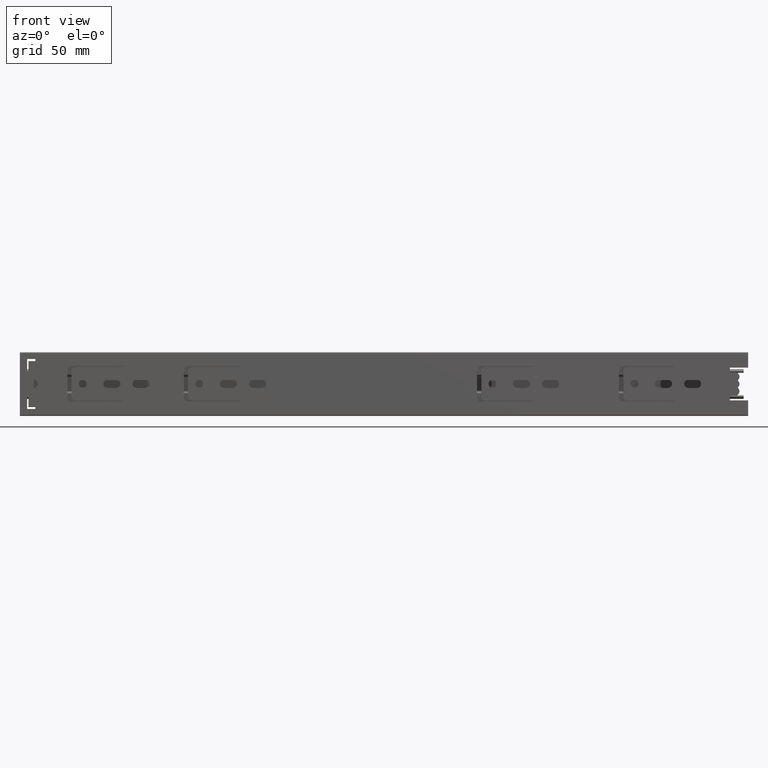
[diagram: clean part render]
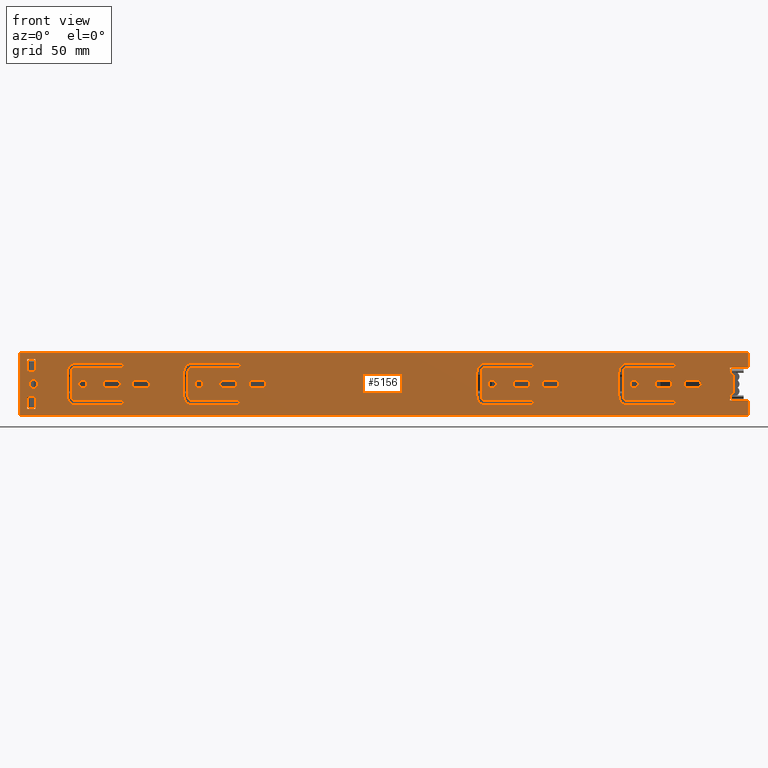
[diagram: same view with one face highlighted and labeled with its STEP entity id]
A machine part, front view. The second image highlights one B-rep face of the part: STEP entity #5156.
In plain terms, the highlighted planar face has unit normal (0, -1, -0).
Its self-contained STEP definition (entity closure, byte-faithful):
#182=FACE_BOUND('',#655,.T.);
#183=FACE_BOUND('',#656,.T.);
#184=FACE_BOUND('',#657,.T.);
#185=FACE_BOUND('',#658,.T.);
#186=FACE_BOUND('',#659,.T.);
#187=FACE_BOUND('',#660,.T.);
#188=FACE_BOUND('',#661,.T.);
#189=FACE_BOUND('',#662,.T.);
#190=FACE_BOUND('',#663,.T.);
#191=FACE_BOUND('',#664,.T.);
#192=FACE_BOUND('',#665,.T.);
#193=FACE_BOUND('',#666,.T.);
#194=FACE_BOUND('',#667,.T.);
#195=FACE_BOUND('',#668,.T.);
#196=FACE_BOUND('',#669,.T.);
#197=FACE_BOUND('',#670,.T.);
#198=FACE_BOUND('',#671,.T.);
#199=FACE_BOUND('',#672,.T.);
#200=FACE_BOUND('',#673,.T.);
#364=FACE_OUTER_BOUND('',#654,.T.);
#654=EDGE_LOOP('',(#4030,#4031,#4032,#4033,#4034,#4035,#4036,#4037,#4038,
#4039,#4040,#4041));
#655=EDGE_LOOP('',(#4042,#4043,#4044,#4045,#4046,#4047,#4048,#4049,#4050,
#4051,#4052,#4053));
#656=EDGE_LOOP('',(#4054,#4055,#4056,#4057,#4058,#4059,#4060,#4061,#4062,
#4063,#4064,#4065));
#657=EDGE_LOOP('',(#4066,#4067,#4068,#4069,#4070,#4071,#4072,#4073,#4074,
#4075,#4076,#4077));
#658=EDGE_LOOP('',(#4078,#4079,#4080,#4081,#4082,#4083,#4084,#4085,#4086,
#4087,#4088,#4089));
#659=EDGE_LOOP('',(#4090,#4091,#4092,#4093));
#660=EDGE_LOOP('',(#4094,#4095,#4096,#4097));
#661=EDGE_LOOP('',(#4098,#4099,#4100,#4101));
#662=EDGE_LOOP('',(#4102,#4103,#4104,#4105));
#663=EDGE_LOOP('',(#4106,#4107,#4108,#4109));
#664=EDGE_LOOP('',(#4110));
#665=EDGE_LOOP('',(#4111));
#666=EDGE_LOOP('',(#4112));
#667=EDGE_LOOP('',(#4113));
#668=EDGE_LOOP('',(#4114));
#669=EDGE_LOOP('',(#4115,#4116,#4117,#4118));
#670=EDGE_LOOP('',(#4119,#4120,#4121,#4122));
#671=EDGE_LOOP('',(#4123,#4124,#4125,#4126));
#672=EDGE_LOOP('',(#4127,#4128,#4129,#4130));
#673=EDGE_LOOP('',(#4131,#4132,#4133,#4134));
#854=LINE('',#7347,#1392);
#859=LINE('',#7356,#1397);
#920=LINE('',#7570,#1458);
#922=LINE('',#7574,#1460);
#925=LINE('',#7579,#1463);
#926=LINE('',#7582,#1464);
#929=LINE('',#7587,#1467);
#930=LINE('',#7590,#1468);
#940=LINE('',#7616,#1478);
#943=LINE('',#7624,#1481);
#946=LINE('',#7632,#1484);
#949=LINE('',#7640,#1487);
#952=LINE('',#7648,#1490);
#955=LINE('',#7655,#1493);
#958=LINE('',#7664,#1496);
#961=LINE('',#7672,#1499);
#964=LINE('',#7680,#1502);
#967=LINE('',#7688,#1505);
#970=LINE('',#7696,#1508);
#973=LINE('',#7703,#1511);
#976=LINE('',#7712,#1514);
#979=LINE('',#7720,#1517);
#982=LINE('',#7728,#1520);
#985=LINE('',#7736,#1523);
#988=LINE('',#7744,#1526);
#991=LINE('',#7751,#1529);
#994=LINE('',#7760,#1532);
#997=LINE('',#7768,#1535);
#1000=LINE('',#7776,#1538);
#1003=LINE('',#7784,#1541);
#1006=LINE('',#7792,#1544);
#1009=LINE('',#7799,#1547);
#1012=LINE('',#7808,#1550);
#1015=LINE('',#7815,#1553);
#1018=LINE('',#7824,#1556);
#1021=LINE('',#7831,#1559);
#1024=LINE('',#7840,#1562);
#1027=LINE('',#7847,#1565);
#1030=LINE('',#7856,#1568);
#1033=LINE('',#7863,#1571);
#1035=LINE('',#7868,#1573);
#1037=LINE('',#7872,#1575);
#1039=LINE('',#7876,#1577);
#1041=LINE('',#7879,#1579);
#1043=LINE('',#7899,#1581);
#1045=LINE('',#7903,#1583);
#1047=LINE('',#7907,#1585);
#1049=LINE('',#7910,#1587);
#1052=LINE('',#7919,#1590);
#1055=LINE('',#7926,#1593);
#1058=LINE('',#7935,#1596);
#1061=LINE('',#7942,#1599);
#1064=LINE('',#7951,#1602);
#1067=LINE('',#7958,#1605);
#1070=LINE('',#7967,#1608);
#1073=LINE('',#7974,#1611);
#1074=LINE('',#7978,#1612);
#1097=LINE('',#8031,#1635);
#1113=LINE('',#8066,#1651);
#1114=LINE('',#8068,#1652);
#1392=VECTOR('',#5842,10.);
#1397=VECTOR('',#5849,2.00000000000003);
#1458=VECTOR('',#6008,2.00000000000003);
#1460=VECTOR('',#6012,4.);
#1463=VECTOR('',#6017,4.);
#1464=VECTOR('',#6020,10.);
#1467=VECTOR('',#6025,10.);
#1468=VECTOR('',#6028,8.);
#1478=VECTOR('',#6048,25.4);
#1481=VECTOR('',#6057,14.2);
#1484=VECTOR('',#6066,25.4);
#1487=VECTOR('',#6075,24.8);
#1490=VECTOR('',#6084,13.);
#1493=VECTOR('',#6093,24.8);
#1496=VECTOR('',#6102,24.7999999999999);
#1499=VECTOR('',#6111,13.);
#1502=VECTOR('',#6120,24.7999999999999);
#1505=VECTOR('',#6129,25.3999999999999);
#1508=VECTOR('',#6138,14.2);
#1511=VECTOR('',#6147,25.3999999999999);
#1514=VECTOR('',#6156,25.4);
#1517=VECTOR('',#6165,14.2);
#1520=VECTOR('',#6174,25.4);
#1523=VECTOR('',#6183,24.8);
#1526=VECTOR('',#6192,13.);
#1529=VECTOR('',#6201,24.8);
#1532=VECTOR('',#6210,25.4000000000001);
#1535=VECTOR('',#6219,14.2);
#1538=VECTOR('',#6228,25.4000000000002);
#1541=VECTOR('',#6237,24.8000000000002);
#1544=VECTOR('',#6246,13.);
#1547=VECTOR('',#6255,24.8000000000002);
#1550=VECTOR('',#6264,5.);
#1553=VECTOR('',#6273,5.);
#1556=VECTOR('',#6282,5.);
#1559=VECTOR('',#6291,5.);
#1562=VECTOR('',#6300,5.);
#1565=VECTOR('',#6309,5.);
#1568=VECTOR('',#6318,5.);
#1571=VECTOR('',#6327,5.);
#1573=VECTOR('',#6331,7.);
#1575=VECTOR('',#6335,4.50000000000003);
#1577=VECTOR('',#6339,7.);
#1579=VECTOR('',#6343,4.50000000000003);
#1581=VECTOR('',#6367,7.);
#1583=VECTOR('',#6371,4.50000000000003);
#1585=VECTOR('',#6375,7.);
#1587=VECTOR('',#6379,4.50000000000003);
#1590=VECTOR('',#6388,5.);
#1593=VECTOR('',#6397,5.);
#1596=VECTOR('',#6406,5.);
#1599=VECTOR('',#6415,5.);
#1602=VECTOR('',#6424,5.);
#1605=VECTOR('',#6433,5.);
#1608=VECTOR('',#6442,5.);
#1611=VECTOR('',#6451,5.);
#1612=VECTOR('',#6454,400.);
#1635=VECTOR('',#6503,34.);
#1651=VECTOR('',#6541,400.);
#1652=VECTOR('',#6544,8.);
#1972=CIRCLE('',#5376,1.2);
#1973=CIRCLE('',#5379,1.99999999999998);
#1974=CIRCLE('',#5382,1.99999999999999);
#1975=CIRCLE('',#5385,1.2);
#1976=CIRCLE('',#5388,5.);
#1977=CIRCLE('',#5391,5.);
#1978=CIRCLE('',#5394,1.2);
#1979=CIRCLE('',#5397,5.);
#1980=CIRCLE('',#5400,5.);
#1981=CIRCLE('',#5403,1.2);
#1982=CIRCLE('',#5406,2.00000000000001);
#1983=CIRCLE('',#5409,2.);
#1984=CIRCLE('',#5412,1.2);
#1985=CIRCLE('',#5415,1.99999999999999);
#1986=CIRCLE('',#5418,1.99999999999999);
#1987=CIRCLE('',#5421,1.2);
#1988=CIRCLE('',#5424,5.00000000000002);
#1989=CIRCLE('',#5427,5.00000000000002);
#1990=CIRCLE('',#5430,1.2);
#1991=CIRCLE('',#5433,2.0000000000001);
#1992=CIRCLE('',#5436,2.0000000000001);
#1993=CIRCLE('',#5439,1.2);
#1994=CIRCLE('',#5442,4.99999999999993);
#1995=CIRCLE('',#5445,4.99999999999993);
#1996=CIRCLE('',#5448,2.2);
#1997=CIRCLE('',#5451,2.2);
#1998=CIRCLE('',#5454,2.2);
#1999=CIRCLE('',#5457,2.2);
#2000=CIRCLE('',#5460,2.20000000000006);
#2001=CIRCLE('',#5463,2.20000000000006);
#2002=CIRCLE('',#5466,2.2);
#2003=CIRCLE('',#5469,2.2);
#2004=CIRCLE('',#5476,2.15);
#2005=CIRCLE('',#5478,2.15);
#2006=CIRCLE('',#5480,2.15);
#2007=CIRCLE('',#5482,2.15);
#2008=CIRCLE('',#5484,2.45);
#2009=CIRCLE('',#5490,2.2);
#2010=CIRCLE('',#5493,2.2);
#2011=CIRCLE('',#5496,2.20000000000006);
#2012=CIRCLE('',#5499,2.20000000000006);
#2013=CIRCLE('',#5502,2.2);
#2014=CIRCLE('',#5505,2.2);
#2015=CIRCLE('',#5508,2.2);
#2016=CIRCLE('',#5511,2.2);
#2141=VERTEX_POINT('',#7344);
#2142=VERTEX_POINT('',#7346);
#2145=VERTEX_POINT('',#7354);
#2249=VERTEX_POINT('',#7569);
#2250=VERTEX_POINT('',#7573);
#2251=VERTEX_POINT('',#7577);
#2252=VERTEX_POINT('',#7581);
#2253=VERTEX_POINT('',#7585);
#2254=VERTEX_POINT('',#7589);
#2263=VERTEX_POINT('',#7609);
#2264=VERTEX_POINT('',#7611);
#2265=VERTEX_POINT('',#7615);
#2266=VERTEX_POINT('',#7619);
#2267=VERTEX_POINT('',#7623);
#2268=VERTEX_POINT('',#7627);
#2269=VERTEX_POINT('',#7631);
#2270=VERTEX_POINT('',#7635);
#2271=VERTEX_POINT('',#7639);
#2272=VERTEX_POINT('',#7643);
#2273=VERTEX_POINT('',#7647);
#2274=VERTEX_POINT('',#7651);
#2275=VERTEX_POINT('',#7657);
#2276=VERTEX_POINT('',#7659);
#2277=VERTEX_POINT('',#7663);
#2278=VERTEX_POINT('',#7667);
#2279=VERTEX_POINT('',#7671);
#2280=VERTEX_POINT('',#7675);
#2281=VERTEX_POINT('',#7679);
#2282=VERTEX_POINT('',#7683);
#2283=VERTEX_POINT('',#7687);
#2284=VERTEX_POINT('',#7691);
#2285=VERTEX_POINT('',#7695);
#2286=VERTEX_POINT('',#7699);
#2287=VERTEX_POINT('',#7705);
#2288=VERTEX_POINT('',#7707);
#2289=VERTEX_POINT('',#7711);
#2290=VERTEX_POINT('',#7715);
#2291=VERTEX_POINT('',#7719);
#2292=VERTEX_POINT('',#7723);
#2293=VERTEX_POINT('',#7727);
#2294=VERTEX_POINT('',#7731);
#2295=VERTEX_POINT('',#7735);
#2296=VERTEX_POINT('',#7739);
#2297=VERTEX_POINT('',#7743);
#2298=VERTEX_POINT('',#7747);
#2299=VERTEX_POINT('',#7753);
#2300=VERTEX_POINT('',#7755);
#2301=VERTEX_POINT('',#7759);
#2302=VERTEX_POINT('',#7763);
#2303=VERTEX_POINT('',#7767);
#2304=VERTEX_POINT('',#7771);
#2305=VERTEX_POINT('',#7775);
#2306=VERTEX_POINT('',#7779);
#2307=VERTEX_POINT('',#7783);
#2308=VERTEX_POINT('',#7787);
#2309=VERTEX_POINT('',#7791);
#2310=VERTEX_POINT('',#7795);
#2311=VERTEX_POINT('',#7801);
#2312=VERTEX_POINT('',#7803);
#2313=VERTEX_POINT('',#7807);
#2314=VERTEX_POINT('',#7811);
#2315=VERTEX_POINT('',#7817);
#2316=VERTEX_POINT('',#7819);
#2317=VERTEX_POINT('',#7823);
#2318=VERTEX_POINT('',#7827);
#2319=VERTEX_POINT('',#7833);
#2320=VERTEX_POINT('',#7835);
#2321=VERTEX_POINT('',#7839);
#2322=VERTEX_POINT('',#7843);
#2323=VERTEX_POINT('',#7849);
#2324=VERTEX_POINT('',#7851);
#2325=VERTEX_POINT('',#7855);
#2326=VERTEX_POINT('',#7859);
#2327=VERTEX_POINT('',#7865);
#2328=VERTEX_POINT('',#7867);
#2329=VERTEX_POINT('',#7871);
#2330=VERTEX_POINT('',#7875);
#2331=VERTEX_POINT('',#7881);
#2332=VERTEX_POINT('',#7884);
#2333=VERTEX_POINT('',#7887);
#2334=VERTEX_POINT('',#7890);
#2335=VERTEX_POINT('',#7893);
#2336=VERTEX_POINT('',#7896);
#2337=VERTEX_POINT('',#7898);
#2338=VERTEX_POINT('',#7902);
#2339=VERTEX_POINT('',#7906);
#2340=VERTEX_POINT('',#7912);
#2341=VERTEX_POINT('',#7914);
#2342=VERTEX_POINT('',#7918);
#2343=VERTEX_POINT('',#7922);
#2344=VERTEX_POINT('',#7928);
#2345=VERTEX_POINT('',#7930);
#2346=VERTEX_POINT('',#7934);
#2347=VERTEX_POINT('',#7938);
#2348=VERTEX_POINT('',#7944);
#2349=VERTEX_POINT('',#7946);
#2350=VERTEX_POINT('',#7950);
#2351=VERTEX_POINT('',#7954);
#2352=VERTEX_POINT('',#7960);
#2353=VERTEX_POINT('',#7962);
#2354=VERTEX_POINT('',#7966);
#2355=VERTEX_POINT('',#7970);
#2356=VERTEX_POINT('',#7976);
#2357=VERTEX_POINT('',#7977);
#2374=VERTEX_POINT('',#8030);
#2654=EDGE_CURVE('',#2141,#2142,#854,.T.);
#2659=EDGE_CURVE('',#2145,#2141,#859,.T.);
#2765=EDGE_CURVE('',#2142,#2249,#920,.T.);
#2767=EDGE_CURVE('',#2250,#2249,#922,.T.);
#2770=EDGE_CURVE('',#2145,#2251,#925,.T.);
#2771=EDGE_CURVE('',#2252,#2250,#926,.T.);
#2774=EDGE_CURVE('',#2251,#2253,#929,.T.);
#2775=EDGE_CURVE('',#2252,#2254,#930,.T.);
#2786=EDGE_CURVE('',#2264,#2263,#1972,.T.);
#2788=EDGE_CURVE('',#2265,#2264,#940,.T.);
#2790=EDGE_CURVE('',#2266,#2265,#1973,.T.);
#2792=EDGE_CURVE('',#2267,#2266,#943,.T.);
#2794=EDGE_CURVE('',#2268,#2267,#1974,.T.);
#2796=EDGE_CURVE('',#2269,#2268,#946,.T.);
#2798=EDGE_CURVE('',#2270,#2269,#1975,.T.);
#2800=EDGE_CURVE('',#2271,#2270,#949,.T.);
#2802=EDGE_CURVE('',#2272,#2271,#1976,.T.);
#2804=EDGE_CURVE('',#2273,#2272,#952,.T.);
#2806=EDGE_CURVE('',#2274,#2273,#1977,.T.);
#2808=EDGE_CURVE('',#2263,#2274,#955,.T.);
#2810=EDGE_CURVE('',#2276,#2275,#1978,.T.);
#2812=EDGE_CURVE('',#2277,#2276,#958,.T.);
#2814=EDGE_CURVE('',#2278,#2277,#1979,.T.);
#2816=EDGE_CURVE('',#2279,#2278,#961,.T.);
#2818=EDGE_CURVE('',#2280,#2279,#1980,.T.);
#2820=EDGE_CURVE('',#2281,#2280,#964,.T.);
#2822=EDGE_CURVE('',#2282,#2281,#1981,.T.);
#2824=EDGE_CURVE('',#2283,#2282,#967,.T.);
#2826=EDGE_CURVE('',#2284,#2283,#1982,.T.);
#2828=EDGE_CURVE('',#2285,#2284,#970,.T.);
#2830=EDGE_CURVE('',#2286,#2285,#1983,.T.);
#2832=EDGE_CURVE('',#2275,#2286,#973,.T.);
#2834=EDGE_CURVE('',#2288,#2287,#1984,.T.);
#2836=EDGE_CURVE('',#2289,#2288,#976,.T.);
#2838=EDGE_CURVE('',#2290,#2289,#1985,.T.);
#2840=EDGE_CURVE('',#2291,#2290,#979,.T.);
#2842=EDGE_CURVE('',#2292,#2291,#1986,.T.);
#2844=EDGE_CURVE('',#2293,#2292,#982,.T.);
#2846=EDGE_CURVE('',#2294,#2293,#1987,.T.);
#2848=EDGE_CURVE('',#2295,#2294,#985,.T.);
#2850=EDGE_CURVE('',#2296,#2295,#1988,.T.);
#2852=EDGE_CURVE('',#2297,#2296,#988,.T.);
#2854=EDGE_CURVE('',#2298,#2297,#1989,.T.);
#2856=EDGE_CURVE('',#2287,#2298,#991,.T.);
#2858=EDGE_CURVE('',#2300,#2299,#1990,.T.);
#2860=EDGE_CURVE('',#2301,#2300,#994,.T.);
#2862=EDGE_CURVE('',#2302,#2301,#1991,.T.);
#2864=EDGE_CURVE('',#2303,#2302,#997,.T.);
#2866=EDGE_CURVE('',#2304,#2303,#1992,.T.);
#2868=EDGE_CURVE('',#2305,#2304,#1000,.T.);
#2870=EDGE_CURVE('',#2306,#2305,#1993,.T.);
#2872=EDGE_CURVE('',#2307,#2306,#1003,.T.);
#2874=EDGE_CURVE('',#2308,#2307,#1994,.T.);
#2876=EDGE_CURVE('',#2309,#2308,#1006,.T.);
#2878=EDGE_CURVE('',#2310,#2309,#1995,.T.);
#2880=EDGE_CURVE('',#2299,#2310,#1009,.T.);
#2882=EDGE_CURVE('',#2312,#2311,#1996,.T.);
#2884=EDGE_CURVE('',#2313,#2312,#1012,.T.);
#2886=EDGE_CURVE('',#2314,#2313,#1997,.T.);
#2888=EDGE_CURVE('',#2311,#2314,#1015,.T.);
#2890=EDGE_CURVE('',#2316,#2315,#1998,.T.);
#2892=EDGE_CURVE('',#2317,#2316,#1018,.T.);
#2894=EDGE_CURVE('',#2318,#2317,#1999,.T.);
#2896=EDGE_CURVE('',#2315,#2318,#1021,.T.);
#2898=EDGE_CURVE('',#2320,#2319,#2000,.T.);
#2900=EDGE_CURVE('',#2321,#2320,#1024,.T.);
#2902=EDGE_CURVE('',#2322,#2321,#2001,.T.);
#2904=EDGE_CURVE('',#2319,#2322,#1027,.T.);
#2906=EDGE_CURVE('',#2324,#2323,#2002,.T.);
#2908=EDGE_CURVE('',#2325,#2324,#1030,.T.);
#2910=EDGE_CURVE('',#2326,#2325,#2003,.T.);
#2912=EDGE_CURVE('',#2323,#2326,#1033,.T.);
#2914=EDGE_CURVE('',#2328,#2327,#1035,.T.);
#2916=EDGE_CURVE('',#2329,#2328,#1037,.T.);
#2918=EDGE_CURVE('',#2330,#2329,#1039,.T.);
#2920=EDGE_CURVE('',#2327,#2330,#1041,.T.);
#2921=EDGE_CURVE('',#2331,#2331,#2004,.T.);
#2922=EDGE_CURVE('',#2332,#2332,#2005,.T.);
#2923=EDGE_CURVE('',#2333,#2333,#2006,.T.);
#2924=EDGE_CURVE('',#2334,#2334,#2007,.T.);
#2925=EDGE_CURVE('',#2335,#2335,#2008,.T.);
#2927=EDGE_CURVE('',#2337,#2336,#1043,.T.);
#2929=EDGE_CURVE('',#2338,#2337,#1045,.T.);
#2931=EDGE_CURVE('',#2339,#2338,#1047,.T.);
#2933=EDGE_CURVE('',#2336,#2339,#1049,.T.);
#2935=EDGE_CURVE('',#2341,#2340,#2009,.T.);
#2937=EDGE_CURVE('',#2342,#2341,#1052,.T.);
#2939=EDGE_CURVE('',#2343,#2342,#2010,.T.);
#2941=EDGE_CURVE('',#2340,#2343,#1055,.T.);
#2943=EDGE_CURVE('',#2345,#2344,#2011,.T.);
#2945=EDGE_CURVE('',#2346,#2345,#1058,.T.);
#2947=EDGE_CURVE('',#2347,#2346,#2012,.T.);
#2949=EDGE_CURVE('',#2344,#2347,#1061,.T.);
#2951=EDGE_CURVE('',#2349,#2348,#2013,.T.);
#2953=EDGE_CURVE('',#2350,#2349,#1064,.T.);
#2955=EDGE_CURVE('',#2351,#2350,#2014,.T.);
#2957=EDGE_CURVE('',#2348,#2351,#1067,.T.);
#2959=EDGE_CURVE('',#2353,#2352,#2015,.T.);
#2961=EDGE_CURVE('',#2354,#2353,#1070,.T.);
#2963=EDGE_CURVE('',#2355,#2354,#2016,.T.);
#2965=EDGE_CURVE('',#2352,#2355,#1073,.T.);
#2966=EDGE_CURVE('',#2356,#2357,#1074,.T.);
#2993=EDGE_CURVE('',#2374,#2356,#1097,.T.);
#3011=EDGE_CURVE('',#2374,#2254,#1113,.T.);
#3012=EDGE_CURVE('',#2357,#2253,#1114,.T.);
#4030=ORIENTED_EDGE('',*,*,#2659,.F.);
#4031=ORIENTED_EDGE('',*,*,#2770,.T.);
#4032=ORIENTED_EDGE('',*,*,#2774,.T.);
#4033=ORIENTED_EDGE('',*,*,#3012,.F.);
#4034=ORIENTED_EDGE('',*,*,#2966,.F.);
#4035=ORIENTED_EDGE('',*,*,#2993,.F.);
#4036=ORIENTED_EDGE('',*,*,#3011,.T.);
#4037=ORIENTED_EDGE('',*,*,#2775,.F.);
#4038=ORIENTED_EDGE('',*,*,#2771,.T.);
#4039=ORIENTED_EDGE('',*,*,#2767,.T.);
#4040=ORIENTED_EDGE('',*,*,#2765,.F.);
#4041=ORIENTED_EDGE('',*,*,#2654,.F.);
#4042=ORIENTED_EDGE('',*,*,#2798,.T.);
#4043=ORIENTED_EDGE('',*,*,#2796,.T.);
#4044=ORIENTED_EDGE('',*,*,#2794,.T.);
#4045=ORIENTED_EDGE('',*,*,#2792,.T.);
#4046=ORIENTED_EDGE('',*,*,#2790,.T.);
#4047=ORIENTED_EDGE('',*,*,#2788,.T.);
#4048=ORIENTED_EDGE('',*,*,#2786,.T.);
#4049=ORIENTED_EDGE('',*,*,#2808,.T.);
#4050=ORIENTED_EDGE('',*,*,#2806,.T.);
#4051=ORIENTED_EDGE('',*,*,#2804,.T.);
#4052=ORIENTED_EDGE('',*,*,#2802,.T.);
#4053=ORIENTED_EDGE('',*,*,#2800,.T.);
#4054=ORIENTED_EDGE('',*,*,#2822,.T.);
#4055=ORIENTED_EDGE('',*,*,#2820,.T.);
#4056=ORIENTED_EDGE('',*,*,#2818,.T.);
#4057=ORIENTED_EDGE('',*,*,#2816,.T.);
#4058=ORIENTED_EDGE('',*,*,#2814,.T.);
#4059=ORIENTED_EDGE('',*,*,#2812,.T.);
#4060=ORIENTED_EDGE('',*,*,#2810,.T.);
#4061=ORIENTED_EDGE('',*,*,#2832,.T.);
#4062=ORIENTED_EDGE('',*,*,#2830,.T.);
#4063=ORIENTED_EDGE('',*,*,#2828,.T.);
#4064=ORIENTED_EDGE('',*,*,#2826,.T.);
#4065=ORIENTED_EDGE('',*,*,#2824,.T.);
#4066=ORIENTED_EDGE('',*,*,#2846,.T.);
#4067=ORIENTED_EDGE('',*,*,#2844,.T.);
#4068=ORIENTED_EDGE('',*,*,#2842,.T.);
#4069=ORIENTED_EDGE('',*,*,#2840,.T.);
#4070=ORIENTED_EDGE('',*,*,#2838,.T.);
#4071=ORIENTED_EDGE('',*,*,#2836,.T.);
#4072=ORIENTED_EDGE('',*,*,#2834,.T.);
#4073=ORIENTED_EDGE('',*,*,#2856,.T.);
#4074=ORIENTED_EDGE('',*,*,#2854,.T.);
#4075=ORIENTED_EDGE('',*,*,#2852,.T.);
#4076=ORIENTED_EDGE('',*,*,#2850,.T.);
#4077=ORIENTED_EDGE('',*,*,#2848,.T.);
#4078=ORIENTED_EDGE('',*,*,#2870,.T.);
#4079=ORIENTED_EDGE('',*,*,#2868,.T.);
#4080=ORIENTED_EDGE('',*,*,#2866,.T.);
#4081=ORIENTED_EDGE('',*,*,#2864,.T.);
#4082=ORIENTED_EDGE('',*,*,#2862,.T.);
#4083=ORIENTED_EDGE('',*,*,#2860,.T.);
#4084=ORIENTED_EDGE('',*,*,#2858,.T.);
#4085=ORIENTED_EDGE('',*,*,#2880,.T.);
#4086=ORIENTED_EDGE('',*,*,#2878,.T.);
#4087=ORIENTED_EDGE('',*,*,#2876,.T.);
#4088=ORIENTED_EDGE('',*,*,#2874,.T.);
#4089=ORIENTED_EDGE('',*,*,#2872,.T.);
#4090=ORIENTED_EDGE('',*,*,#2886,.T.);
#4091=ORIENTED_EDGE('',*,*,#2884,.T.);
#4092=ORIENTED_EDGE('',*,*,#2882,.T.);
#4093=ORIENTED_EDGE('',*,*,#2888,.T.);
#4094=ORIENTED_EDGE('',*,*,#2894,.T.);
#4095=ORIENTED_EDGE('',*,*,#2892,.T.);
#4096=ORIENTED_EDGE('',*,*,#2890,.T.);
#4097=ORIENTED_EDGE('',*,*,#2896,.T.);
#4098=ORIENTED_EDGE('',*,*,#2902,.T.);
#4099=ORIENTED_EDGE('',*,*,#2900,.T.);
#4100=ORIENTED_EDGE('',*,*,#2898,.T.);
#4101=ORIENTED_EDGE('',*,*,#2904,.T.);
#4102=ORIENTED_EDGE('',*,*,#2910,.T.);
#4103=ORIENTED_EDGE('',*,*,#2908,.T.);
#4104=ORIENTED_EDGE('',*,*,#2906,.T.);
#4105=ORIENTED_EDGE('',*,*,#2912,.T.);
#4106=ORIENTED_EDGE('',*,*,#2918,.T.);
#4107=ORIENTED_EDGE('',*,*,#2916,.T.);
#4108=ORIENTED_EDGE('',*,*,#2914,.T.);
#4109=ORIENTED_EDGE('',*,*,#2920,.T.);
#4110=ORIENTED_EDGE('',*,*,#2921,.T.);
#4111=ORIENTED_EDGE('',*,*,#2922,.T.);
#4112=ORIENTED_EDGE('',*,*,#2923,.T.);
#4113=ORIENTED_EDGE('',*,*,#2924,.T.);
#4114=ORIENTED_EDGE('',*,*,#2925,.T.);
#4115=ORIENTED_EDGE('',*,*,#2931,.T.);
#4116=ORIENTED_EDGE('',*,*,#2929,.T.);
#4117=ORIENTED_EDGE('',*,*,#2927,.T.);
#4118=ORIENTED_EDGE('',*,*,#2933,.T.);
#4119=ORIENTED_EDGE('',*,*,#2939,.T.);
#4120=ORIENTED_EDGE('',*,*,#2937,.T.);
#4121=ORIENTED_EDGE('',*,*,#2935,.T.);
#4122=ORIENTED_EDGE('',*,*,#2941,.T.);
#4123=ORIENTED_EDGE('',*,*,#2947,.T.);
#4124=ORIENTED_EDGE('',*,*,#2945,.T.);
#4125=ORIENTED_EDGE('',*,*,#2943,.T.);
#4126=ORIENTED_EDGE('',*,*,#2949,.T.);
#4127=ORIENTED_EDGE('',*,*,#2955,.T.);
#4128=ORIENTED_EDGE('',*,*,#2953,.T.);
#4129=ORIENTED_EDGE('',*,*,#2951,.T.);
#4130=ORIENTED_EDGE('',*,*,#2957,.T.);
#4131=ORIENTED_EDGE('',*,*,#2963,.T.);
#4132=ORIENTED_EDGE('',*,*,#2961,.T.);
#4133=ORIENTED_EDGE('',*,*,#2959,.T.);
#4134=ORIENTED_EDGE('',*,*,#2965,.T.);
#4940=PLANE('',#5538);
#5156=ADVANCED_FACE('',(#364,#182,#183,#184,#185,#186,#187,#188,#189,#190,
#191,#192,#193,#194,#195,#196,#197,#198,#199,#200),#4940,.T.);
#5376=AXIS2_PLACEMENT_3D('',#7612,#6043,#6044);
#5379=AXIS2_PLACEMENT_3D('',#7620,#6052,#6053);
#5382=AXIS2_PLACEMENT_3D('',#7628,#6061,#6062);
#5385=AXIS2_PLACEMENT_3D('',#7636,#6070,#6071);
#5388=AXIS2_PLACEMENT_3D('',#7644,#6079,#6080);
#5391=AXIS2_PLACEMENT_3D('',#7652,#6088,#6089);
#5394=AXIS2_PLACEMENT_3D('',#7660,#6097,#6098);
#5397=AXIS2_PLACEMENT_3D('',#7668,#6106,#6107);
#5400=AXIS2_PLACEMENT_3D('',#7676,#6115,#6116);
#5403=AXIS2_PLACEMENT_3D('',#7684,#6124,#6125);
#5406=AXIS2_PLACEMENT_3D('',#7692,#6133,#6134);
#5409=AXIS2_PLACEMENT_3D('',#7700,#6142,#6143);
#5412=AXIS2_PLACEMENT_3D('',#7708,#6151,#6152);
#5415=AXIS2_PLACEMENT_3D('',#7716,#6160,#6161);
#5418=AXIS2_PLACEMENT_3D('',#7724,#6169,#6170);
#5421=AXIS2_PLACEMENT_3D('',#7732,#6178,#6179);
#5424=AXIS2_PLACEMENT_3D('',#7740,#6187,#6188);
#5427=AXIS2_PLACEMENT_3D('',#7748,#6196,#6197);
#5430=AXIS2_PLACEMENT_3D('',#7756,#6205,#6206);
#5433=AXIS2_PLACEMENT_3D('',#7764,#6214,#6215);
#5436=AXIS2_PLACEMENT_3D('',#7772,#6223,#6224);
#5439=AXIS2_PLACEMENT_3D('',#7780,#6232,#6233);
#5442=AXIS2_PLACEMENT_3D('',#7788,#6241,#6242);
#5445=AXIS2_PLACEMENT_3D('',#7796,#6250,#6251);
#5448=AXIS2_PLACEMENT_3D('',#7804,#6259,#6260);
#5451=AXIS2_PLACEMENT_3D('',#7812,#6268,#6269);
#5454=AXIS2_PLACEMENT_3D('',#7820,#6277,#6278);
#5457=AXIS2_PLACEMENT_3D('',#7828,#6286,#6287);
#5460=AXIS2_PLACEMENT_3D('',#7836,#6295,#6296);
#5463=AXIS2_PLACEMENT_3D('',#7844,#6304,#6305);
#5466=AXIS2_PLACEMENT_3D('',#7852,#6313,#6314);
#5469=AXIS2_PLACEMENT_3D('',#7860,#6322,#6323);
#5476=AXIS2_PLACEMENT_3D('',#7882,#6346,#6347);
#5478=AXIS2_PLACEMENT_3D('',#7885,#6350,#6351);
#5480=AXIS2_PLACEMENT_3D('',#7888,#6354,#6355);
#5482=AXIS2_PLACEMENT_3D('',#7891,#6358,#6359);
#5484=AXIS2_PLACEMENT_3D('',#7894,#6362,#6363);
#5490=AXIS2_PLACEMENT_3D('',#7915,#6383,#6384);
#5493=AXIS2_PLACEMENT_3D('',#7923,#6392,#6393);
#5496=AXIS2_PLACEMENT_3D('',#7931,#6401,#6402);
#5499=AXIS2_PLACEMENT_3D('',#7939,#6410,#6411);
#5502=AXIS2_PLACEMENT_3D('',#7947,#6419,#6420);
#5505=AXIS2_PLACEMENT_3D('',#7955,#6428,#6429);
#5508=AXIS2_PLACEMENT_3D('',#7963,#6437,#6438);
#5511=AXIS2_PLACEMENT_3D('',#7971,#6446,#6447);
#5538=AXIS2_PLACEMENT_3D('',#8067,#6542,#6543);
#5842=DIRECTION('',(0.,3.06161699786838E-16,-1.));
#5849=DIRECTION('',(1.,0.,0.));
#6008=DIRECTION('',(-1.,0.,0.));
#6012=DIRECTION('',(0.,-3.06161699786838E-16,1.));
#6017=DIRECTION('',(0.,-3.06161699786838E-16,1.));
#6020=DIRECTION('',(-1.,4.71385096176607E-32,-1.53966056663784E-16));
#6025=DIRECTION('',(1.,-9.42770192353215E-32,3.07932113327568E-16));
#6028=DIRECTION('',(0.,-3.06161699786838E-16,-1.));
#6043=DIRECTION('center_axis',(0.,1.,3.06161699786838E-16));
#6044=DIRECTION('ref_axis',(0.,-3.70074341541719E-16,1.));
#6048=DIRECTION('',(1.,1.07057564838338E-31,-3.49676543189025E-16));
#6052=DIRECTION('center_axis',(0.,-1.,-3.06161699786838E-16));
#6053=DIRECTION('ref_axis',(-1.,-3.4923529658222E-30,9.43689570931387E-15));
#6057=DIRECTION('',(0.,3.06161699786838E-16,-1.));
#6061=DIRECTION('center_axis',(0.,-1.,-3.06161699786838E-16));
#6062=DIRECTION('ref_axis',(0.,-3.70074341541719E-16,1.));
#6066=DIRECTION('',(-1.,-3.21172694515013E-31,1.04902962956708E-15));
#6070=DIRECTION('center_axis',(0.,1.,3.06161699786838E-16));
#6071=DIRECTION('ref_axis',(0.,-3.70074341541719E-16,1.));
#6075=DIRECTION('',(1.,-1.09647667213459E-31,3.58136459556502E-16));
#6079=DIRECTION('center_axis',(0.,1.,3.06161699786838E-16));
#6080=DIRECTION('ref_axis',(0.,3.70074341541719E-16,-1.));
#6084=DIRECTION('',(0.,-3.06161699786838E-16,1.));
#6088=DIRECTION('center_axis',(0.,1.,3.06161699786838E-16));
#6089=DIRECTION('ref_axis',(1.,0.,0.));
#6093=DIRECTION('',(-1.,-1.23353625615141E-31,4.02903517001065E-16));
#6097=DIRECTION('center_axis',(0.,1.,3.06161699786838E-16));
#6098=DIRECTION('ref_axis',(0.,0.,1.));
#6102=DIRECTION('',(1.,-5.48238336067296E-32,1.79068229778252E-16));
#6106=DIRECTION('center_axis',(0.,1.,3.06161699786838E-16));
#6107=DIRECTION('ref_axis',(0.,0.,-1.));
#6111=DIRECTION('',(0.,-3.06161699786838E-16,1.));
#6115=DIRECTION('center_axis',(0.,1.,3.06161699786838E-16));
#6116=DIRECTION('ref_axis',(1.,0.,0.));
#6120=DIRECTION('',(-1.,-5.48238336067296E-32,1.79068229778252E-16));
#6124=DIRECTION('center_axis',(0.,1.,3.06161699786838E-16));
#6125=DIRECTION('ref_axis',(0.,0.,1.));
#6129=DIRECTION('',(1.,2.67643912095845E-32,-8.74191357972567E-17));
#6133=DIRECTION('center_axis',(0.,-1.,-3.06161699786838E-16));
#6134=DIRECTION('ref_axis',(-1.,0.,-4.99600361081318E-15));
#6138=DIRECTION('',(-3.127388801761E-16,3.06161699786838E-16,-1.));
#6142=DIRECTION('center_axis',(0.,-1.,-3.06161699786838E-16));
#6143=DIRECTION('ref_axis',(2.22044604925032E-15,0.,1.));
#6147=DIRECTION('',(-1.,-5.35287824191691E-32,1.74838271594513E-16));
#6151=DIRECTION('center_axis',(0.,1.,3.06161699786838E-16));
#6152=DIRECTION('ref_axis',(0.,-3.70074341541719E-16,1.));
#6156=DIRECTION('',(1.,5.35287824191689E-32,-1.74838271594513E-16));
#6160=DIRECTION('center_axis',(0.,-1.,-3.06161699786838E-16));
#6161=DIRECTION('ref_axis',(-1.,-2.25975780141436E-30,6.10622663543838E-15));
#6165=DIRECTION('',(0.,3.06161699786838E-16,-1.));
#6169=DIRECTION('center_axis',(0.,-1.,-3.06161699786838E-16));
#6170=DIRECTION('ref_axis',(0.,-3.70074341541719E-16,1.));
#6174=DIRECTION('',(-1.,-2.14115129676676E-31,6.99353086378052E-16));
#6178=DIRECTION('center_axis',(0.,1.,3.06161699786838E-16));
#6179=DIRECTION('ref_axis',(0.,-3.70074341541719E-16,1.));
#6183=DIRECTION('',(1.,-1.64471500820189E-31,5.37204689334754E-16));
#6187=DIRECTION('center_axis',(0.,1.,3.06161699786838E-16));
#6188=DIRECTION('ref_axis',(0.,3.70074341541719E-16,-1.));
#6192=DIRECTION('',(0.,-3.06161699786838E-16,1.));
#6196=DIRECTION('center_axis',(0.,1.,3.06161699786838E-16));
#6197=DIRECTION('ref_axis',(1.,0.,0.));
#6201=DIRECTION('',(-1.,-1.37059584016824E-31,4.47670574445628E-16));
#6205=DIRECTION('center_axis',(0.,1.,3.06161699786838E-16));
#6206=DIRECTION('ref_axis',(0.,-3.70074341541719E-16,1.));
#6210=DIRECTION('',(1.,1.73968542862298E-31,-5.68224382682164E-16));
#6214=DIRECTION('center_axis',(0.,-1.,-3.06161699786838E-16));
#6215=DIRECTION('ref_axis',(-1.,1.9516090103123E-29,-5.27355936696923E-14));
#6219=DIRECTION('',(0.,3.06161699786838E-16,-1.));
#6223=DIRECTION('center_axis',(0.,-1.,-3.06161699786838E-16));
#6224=DIRECTION('ref_axis',(-7.10542735760065E-14,-3.70074341541719E-16,
1.));
#6228=DIRECTION('',(-1.,-5.35287824191685E-32,1.74838271594511E-16));
#6232=DIRECTION('center_axis',(0.,1.,3.06161699786838E-16));
#6233=DIRECTION('ref_axis',(0.,-3.70074341541719E-16,1.));
#6237=DIRECTION('',(1.,-1.09647667213458E-31,3.581364595565E-16));
#6241=DIRECTION('center_axis',(0.,1.,3.06161699786838E-16));
#6242=DIRECTION('ref_axis',(0.,3.70074341541719E-16,-1.));
#6246=DIRECTION('',(0.,-3.06161699786838E-16,1.));
#6250=DIRECTION('center_axis',(0.,1.,3.06161699786838E-16));
#6251=DIRECTION('ref_axis',(1.,0.,0.));
#6255=DIRECTION('',(-1.,-8.22357504100936E-32,2.68602344667375E-16));
#6259=DIRECTION('center_axis',(0.,1.,3.06161699786838E-16));
#6260=DIRECTION('ref_axis',(0.,-2.77555756156289E-16,1.));
#6264=DIRECTION('',(1.,2.71926214689378E-31,-8.88178419700125E-16));
#6268=DIRECTION('center_axis',(0.,1.,3.06161699786838E-16));
#6269=DIRECTION('ref_axis',(0.,2.77555756156289E-16,-1.));
#6273=DIRECTION('',(-1.,-4.07889322034067E-31,1.33226762955019E-15));
#6277=DIRECTION('center_axis',(0.,1.,3.06161699786838E-16));
#6278=DIRECTION('ref_axis',(0.,-2.77555756156289E-16,1.));
#6282=DIRECTION('',(1.,1.35963107344689E-31,-4.44089209850063E-16));
#6286=DIRECTION('center_axis',(0.,1.,3.06161699786838E-16));
#6287=DIRECTION('ref_axis',(0.,2.77555756156289E-16,-1.));
#6291=DIRECTION('',(-1.,1.35963107344689E-31,-4.44089209850063E-16));
#6295=DIRECTION('center_axis',(0.,1.,3.06161699786838E-16));
#6296=DIRECTION('ref_axis',(0.,-2.77555756156289E-16,1.));
#6300=DIRECTION('',(1.,0.,0.));
#6304=DIRECTION('center_axis',(0.,1.,3.06161699786838E-16));
#6305=DIRECTION('ref_axis',(0.,2.77555756156289E-16,-1.));
#6309=DIRECTION('',(-1.,0.,0.));
#6313=DIRECTION('center_axis',(0.,1.,3.06161699786838E-16));
#6314=DIRECTION('ref_axis',(0.,-2.77555756156289E-16,1.));
#6318=DIRECTION('',(1.,0.,0.));
#6322=DIRECTION('center_axis',(0.,1.,3.06161699786838E-16));
#6323=DIRECTION('ref_axis',(0.,2.77555756156289E-16,-1.));
#6327=DIRECTION('',(-1.,-2.71926214689378E-31,8.88178419700125E-16));
#6331=DIRECTION('',(3.1720657846433E-16,3.06161699786838E-16,-1.));
#6335=DIRECTION('',(1.,0.,0.));
#6339=DIRECTION('',(-4.75809867696496E-16,-3.06161699786838E-16,1.));
#6343=DIRECTION('',(-1.,0.,0.));
#6346=DIRECTION('center_axis',(0.,1.,3.06161699786838E-16));
#6347=DIRECTION('ref_axis',(-1.,0.,0.));
#6350=DIRECTION('center_axis',(0.,1.,3.06161699786838E-16));
#6351=DIRECTION('ref_axis',(-1.,0.,0.));
#6354=DIRECTION('center_axis',(0.,1.,3.06161699786838E-16));
#6355=DIRECTION('ref_axis',(-1.,0.,0.));
#6358=DIRECTION('center_axis',(0.,1.,3.06161699786838E-16));
#6359=DIRECTION('ref_axis',(-1.,0.,0.));
#6362=DIRECTION('center_axis',(0.,1.,3.06161699786838E-16));
#6363=DIRECTION('ref_axis',(-1.,0.,0.));
#6367=DIRECTION('',(0.,3.06161699786838E-16,-1.));
#6371=DIRECTION('',(1.,0.,0.));
#6375=DIRECTION('',(-1.58603289232165E-16,-3.06161699786838E-16,1.));
#6379=DIRECTION('',(-1.,0.,0.));
#6383=DIRECTION('center_axis',(0.,1.,3.06161699786838E-16));
#6384=DIRECTION('ref_axis',(0.,-2.77555756156289E-16,1.));
#6388=DIRECTION('',(1.,0.,0.));
#6392=DIRECTION('center_axis',(0.,1.,3.06161699786838E-16));
#6393=DIRECTION('ref_axis',(0.,2.77555756156289E-16,-1.));
#6397=DIRECTION('',(-1.,-1.35963107344689E-31,4.44089209850063E-16));
#6401=DIRECTION('center_axis',(0.,1.,3.06161699786838E-16));
#6402=DIRECTION('ref_axis',(0.,-2.77555756156289E-16,1.));
#6406=DIRECTION('',(1.,-1.35963107344689E-31,4.44089209850063E-16));
#6410=DIRECTION('center_axis',(0.,1.,3.06161699786838E-16));
#6411=DIRECTION('ref_axis',(0.,2.77555756156289E-16,-1.));
#6415=DIRECTION('',(-1.,0.,0.));
#6419=DIRECTION('center_axis',(0.,1.,3.06161699786838E-16));
#6420=DIRECTION('ref_axis',(0.,-2.77555756156289E-16,1.));
#6424=DIRECTION('',(1.,1.35963107344689E-31,-4.44089209850063E-16));
#6428=DIRECTION('center_axis',(0.,1.,3.06161699786838E-16));
#6429=DIRECTION('ref_axis',(0.,2.77555756156289E-16,-1.));
#6433=DIRECTION('',(-1.,-1.35963107344689E-31,4.44089209850063E-16));
#6437=DIRECTION('center_axis',(0.,1.,3.06161699786838E-16));
#6438=DIRECTION('ref_axis',(0.,-2.77555756156289E-16,1.));
#6442=DIRECTION('',(1.,-2.71926214689378E-31,8.88178419700125E-16));
#6446=DIRECTION('center_axis',(0.,1.,3.06161699786838E-16));
#6447=DIRECTION('ref_axis',(0.,2.77555756156289E-16,-1.));
#6451=DIRECTION('',(-1.,1.35963107344689E-31,-4.44089209850063E-16));
#6454=DIRECTION('',(1.,0.,0.));
#6503=DIRECTION('',(0.,-3.06161699786838E-16,1.));
#6541=DIRECTION('',(1.,0.,0.));
#6542=DIRECTION('center_axis',(0.,-1.,-3.06161699786838E-16));
#6543=DIRECTION('ref_axis',(0.,3.06161699786838E-16,-1.));
#6544=DIRECTION('',(0.,-3.06161699786838E-16,-1.));
#7344=CARTESIAN_POINT('',(192.,-1.53080849893419E-15,5.));
#7346=CARTESIAN_POINT('',(192.,1.53080849893419E-15,-5.));
#7347=CARTESIAN_POINT('',(192.,-1.53080849893419E-15,5.));
#7354=CARTESIAN_POINT('',(190.,-1.53080849893419E-15,5.));
#7356=CARTESIAN_POINT('',(190.,-1.53080849893419E-15,5.));
#7569=CARTESIAN_POINT('',(190.,1.53080849893419E-15,-5.));
#7570=CARTESIAN_POINT('',(192.,1.53080849893419E-15,-5.));
#7573=CARTESIAN_POINT('',(190.,2.75545529808155E-15,-9.));
#7574=CARTESIAN_POINT('',(190.,1.37772764904077E-15,-4.5));
#7577=CARTESIAN_POINT('',(190.,-2.75545529808154E-15,9.));
#7579=CARTESIAN_POINT('',(190.,1.37772764904077E-15,-4.5));
#7581=CARTESIAN_POINT('',(200.,-2.75545529808154E-15,-9.));
#7582=CARTESIAN_POINT('',(102.210829767821,2.75545529808155E-15,-9.00000000000002));
#7585=CARTESIAN_POINT('',(200.,2.75545529808155E-15,9.));
#7587=CARTESIAN_POINT('',(95.,-2.75545529808153E-15,8.99999999999997));
#7589=CARTESIAN_POINT('',(200.,5.20474889637625E-15,-17.));
#7590=CARTESIAN_POINT('',(200.,5.20474889637625E-15,17.));
#7609=CARTESIAN_POINT('',(80.8,3.52085954754864E-15,-11.5));
#7611=CARTESIAN_POINT('',(80.8,2.78607146806023E-15,-9.1));
#7612=CARTESIAN_POINT('Origin',(80.8,3.81176571787971E-15,-10.3));
#7615=CARTESIAN_POINT('',(55.4,2.78607146806023E-15,-9.09999999999999));
#7616=CARTESIAN_POINT('',(27.7,2.78607146806022E-15,-9.09999999999998));
#7619=CARTESIAN_POINT('',(53.4,2.17374806848655E-15,-7.09999999999999));
#7620=CARTESIAN_POINT('Origin',(55.4,2.62752782494621E-15,-7.10000000000001));
#7623=CARTESIAN_POINT('',(53.4,-2.17374806848655E-15,7.10000000000001));
#7624=CARTESIAN_POINT('',(53.4,-1.08687403424328E-15,3.55000000000001));
#7627=CARTESIAN_POINT('',(55.4,-2.78607146806024E-15,9.10000000000003));
#7628=CARTESIAN_POINT('Origin',(55.4,-2.62752782494622E-15,7.10000000000004));
#7631=CARTESIAN_POINT('',(80.8,-2.78607146806023E-15,9.1));
#7632=CARTESIAN_POINT('',(40.4,-2.78607146806024E-15,9.10000000000004));
#7635=CARTESIAN_POINT('',(80.8,-3.52085954754864E-15,11.5));
#7636=CARTESIAN_POINT('Origin',(80.8,-3.81176571787971E-15,10.3));
#7639=CARTESIAN_POINT('',(56.,-3.52085954754864E-15,11.5));
#7640=CARTESIAN_POINT('',(28.,-3.52085954754864E-15,11.5));
#7643=CARTESIAN_POINT('',(51.,-1.99005104861445E-15,6.49999999999999));
#7644=CARTESIAN_POINT('Origin',(56.,-2.40548322002117E-15,6.49999999999999));
#7647=CARTESIAN_POINT('',(51.,1.99005104861445E-15,-6.5));
#7648=CARTESIAN_POINT('',(51.,9.95025524307224E-16,-3.25));
#7651=CARTESIAN_POINT('',(56.,3.52085954754864E-15,-11.5));
#7652=CARTESIAN_POINT('Origin',(56.,2.40548322002117E-15,-6.5));
#7655=CARTESIAN_POINT('',(40.4,3.52085954754864E-15,-11.5));
#7657=CARTESIAN_POINT('',(-144.2,-2.78607146806023E-15,9.10000000000001));
#7659=CARTESIAN_POINT('',(-144.2,-3.52085954754864E-15,11.5));
#7660=CARTESIAN_POINT('Origin',(-144.2,0.,10.3));
#7663=CARTESIAN_POINT('',(-169.,-3.52085954754863E-15,11.5));
#7664=CARTESIAN_POINT('',(-84.5,-3.52085954754864E-15,11.5));
#7667=CARTESIAN_POINT('',(-174.,-1.99005104861445E-15,6.5));
#7668=CARTESIAN_POINT('Origin',(-169.,0.,6.5));
#7671=CARTESIAN_POINT('',(-174.,1.99005104861445E-15,-6.5));
#7672=CARTESIAN_POINT('',(-174.,9.95025524307224E-16,-3.25));
#7675=CARTESIAN_POINT('',(-169.,3.52085954754864E-15,-11.5));
#7676=CARTESIAN_POINT('Origin',(-169.,0.,-6.5));
#7679=CARTESIAN_POINT('',(-144.2,3.52085954754864E-15,-11.5));
#7680=CARTESIAN_POINT('',(-72.1,3.52085954754864E-15,-11.5));
#7683=CARTESIAN_POINT('',(-144.2,2.78607146806023E-15,-9.09999999999999));
#7684=CARTESIAN_POINT('Origin',(-144.2,0.,-10.3));
#7687=CARTESIAN_POINT('',(-169.6,2.78607146806023E-15,-9.09999999999999));
#7688=CARTESIAN_POINT('',(-84.8,2.78607146806023E-15,-9.1));
#7691=CARTESIAN_POINT('',(-171.6,2.17374806848655E-15,-7.09999999999999));
#7692=CARTESIAN_POINT('Origin',(-169.6,0.,-7.09999999999998));
#7695=CARTESIAN_POINT('',(-171.6,-2.17374806848655E-15,7.10000000000001));
#7696=CARTESIAN_POINT('',(-171.6,-1.08687403424329E-15,3.55000000000003));
#7699=CARTESIAN_POINT('',(-169.6,-2.78607146806023E-15,9.10000000000002));
#7700=CARTESIAN_POINT('Origin',(-169.6,0.,7.10000000000002));
#7703=CARTESIAN_POINT('',(-72.1000000000001,-2.78607146806023E-15,9.1));
#7705=CARTESIAN_POINT('',(-80.2,3.52085954754864E-15,-11.5));
#7707=CARTESIAN_POINT('',(-80.2,2.78607146806023E-15,-9.1));
#7708=CARTESIAN_POINT('Origin',(-80.2,3.81176571787971E-15,-10.3));
#7711=CARTESIAN_POINT('',(-105.6,2.78607146806023E-15,-9.1));
#7712=CARTESIAN_POINT('',(-52.8,2.78607146806023E-15,-9.10000000000001));
#7715=CARTESIAN_POINT('',(-107.6,2.17374806848655E-15,-7.09999999999999));
#7716=CARTESIAN_POINT('Origin',(-105.6,2.62752782494621E-15,-7.10000000000001));
#7719=CARTESIAN_POINT('',(-107.6,-2.17374806848655E-15,7.10000000000001));
#7720=CARTESIAN_POINT('',(-107.6,-1.08687403424328E-15,3.55000000000001));
#7723=CARTESIAN_POINT('',(-105.6,-2.78607146806023E-15,9.10000000000002));
#7724=CARTESIAN_POINT('Origin',(-105.6,-2.62752782494621E-15,7.10000000000003));
#7727=CARTESIAN_POINT('',(-80.2,-2.78607146806023E-15,9.1));
#7728=CARTESIAN_POINT('',(-40.1,-2.78607146806022E-15,9.09999999999997));
#7731=CARTESIAN_POINT('',(-80.2,-3.52085954754864E-15,11.5));
#7732=CARTESIAN_POINT('Origin',(-80.2,-3.81176571787971E-15,10.3));
#7735=CARTESIAN_POINT('',(-105.,-3.52085954754864E-15,11.5));
#7736=CARTESIAN_POINT('',(-52.5,-3.52085954754865E-15,11.5));
#7739=CARTESIAN_POINT('',(-110.,-1.99005104861445E-15,6.49999999999999));
#7740=CARTESIAN_POINT('Origin',(-105.,-2.40548322002117E-15,6.49999999999999));
#7743=CARTESIAN_POINT('',(-110.,1.99005104861445E-15,-6.5));
#7744=CARTESIAN_POINT('',(-110.,9.95025524307224E-16,-3.25));
#7747=CARTESIAN_POINT('',(-105.,3.52085954754864E-15,-11.5));
#7748=CARTESIAN_POINT('Origin',(-105.,2.40548322002117E-15,-6.5));
#7751=CARTESIAN_POINT('',(-40.1,3.52085954754865E-15,-11.5));
#7753=CARTESIAN_POINT('',(158.8,3.52085954754864E-15,-11.5));
#7755=CARTESIAN_POINT('',(158.8,2.78607146806023E-15,-9.1));
#7756=CARTESIAN_POINT('Origin',(158.8,3.81176571787971E-15,-10.3));
#7759=CARTESIAN_POINT('',(133.4,2.78607146806022E-15,-9.09999999999999));
#7760=CARTESIAN_POINT('',(66.7,2.78607146806021E-15,-9.09999999999995));
#7763=CARTESIAN_POINT('',(131.4,2.17374806848655E-15,-7.09999999999999));
#7764=CARTESIAN_POINT('Origin',(133.4,2.62752782494616E-15,-7.09999999999989));
#7767=CARTESIAN_POINT('',(131.4,-2.17374806848655E-15,7.10000000000001));
#7768=CARTESIAN_POINT('',(131.4,-1.08687403424328E-15,3.55000000000001));
#7771=CARTESIAN_POINT('',(133.4,-2.78607146806023E-15,9.10000000000001));
#7772=CARTESIAN_POINT('Origin',(133.4,-2.62752782494617E-15,7.09999999999991));
#7775=CARTESIAN_POINT('',(158.8,-2.78607146806023E-15,9.1));
#7776=CARTESIAN_POINT('',(79.4000000000001,-2.78607146806023E-15,9.10000000000002));
#7779=CARTESIAN_POINT('',(158.8,-3.52085954754864E-15,11.5));
#7780=CARTESIAN_POINT('Origin',(158.8,-3.81176571787971E-15,10.3));
#7783=CARTESIAN_POINT('',(134.,-3.52085954754864E-15,11.5));
#7784=CARTESIAN_POINT('',(67.,-3.52085954754863E-15,11.5));
#7787=CARTESIAN_POINT('',(129.,-1.99005104861445E-15,6.49999999999999));
#7788=CARTESIAN_POINT('Origin',(134.,-2.40548322002117E-15,6.49999999999999));
#7791=CARTESIAN_POINT('',(129.,1.99005104861445E-15,-6.5));
#7792=CARTESIAN_POINT('',(129.,9.95025524307224E-16,-3.25));
#7795=CARTESIAN_POINT('',(134.,3.52085954754864E-15,-11.5));
#7796=CARTESIAN_POINT('Origin',(134.,2.40548322002117E-15,-6.5));
#7799=CARTESIAN_POINT('',(79.4000000000001,3.52085954754863E-15,-11.5));
#7801=CARTESIAN_POINT('',(156.,6.73555739531045E-16,-2.2));
#7803=CARTESIAN_POINT('',(156.,-6.73555739531043E-16,2.2));
#7804=CARTESIAN_POINT('Origin',(156.,6.16297582203915E-31,-2.22044604925031E-15));
#7807=CARTESIAN_POINT('',(151.,-6.73555739531045E-16,2.2));
#7808=CARTESIAN_POINT('',(75.5,-6.73555739531065E-16,2.20000000000007));
#7811=CARTESIAN_POINT('',(151.,6.73555739531044E-16,-2.2));
#7812=CARTESIAN_POINT('Origin',(151.,6.16297582203915E-31,-2.22044604925031E-15));
#7815=CARTESIAN_POINT('',(78.,6.73555739531014E-16,-2.1999999999999));
#7817=CARTESIAN_POINT('',(78.,6.73555739531045E-16,-2.2));
#7819=CARTESIAN_POINT('',(78.,-6.73555739531044E-16,2.2));
#7820=CARTESIAN_POINT('Origin',(78.,0.,0.));
#7823=CARTESIAN_POINT('',(73.,-6.73555739531045E-16,2.2));
#7824=CARTESIAN_POINT('',(36.5,-6.7355573953105E-16,2.20000000000002));
#7827=CARTESIAN_POINT('',(73.,6.73555739531045E-16,-2.2));
#7828=CARTESIAN_POINT('Origin',(73.,0.,0.));
#7831=CARTESIAN_POINT('',(39.,6.73555739531049E-16,-2.20000000000002));
#7833=CARTESIAN_POINT('',(-83.,6.73555739531045E-16,-2.2));
#7835=CARTESIAN_POINT('',(-83.,-6.73555739531045E-16,2.2));
#7836=CARTESIAN_POINT('Origin',(-83.,0.,0.));
#7839=CARTESIAN_POINT('',(-88.,-6.73555739531045E-16,2.2));
#7840=CARTESIAN_POINT('',(-44.,-6.73555739531045E-16,2.2));
#7843=CARTESIAN_POINT('',(-88.,6.73555739531045E-16,-2.2));
#7844=CARTESIAN_POINT('Origin',(-88.,0.,0.));
#7847=CARTESIAN_POINT('',(-41.5,6.73555739531045E-16,-2.2));
#7849=CARTESIAN_POINT('',(-147.,6.73555739531043E-16,-2.19999999999999));
#7851=CARTESIAN_POINT('',(-147.,-6.73555739531046E-16,2.20000000000001));
#7852=CARTESIAN_POINT('Origin',(-147.,-2.46519032881566E-30,8.88178419700125E-15));
#7855=CARTESIAN_POINT('',(-152.,-6.73555739531046E-16,2.20000000000001));
#7856=CARTESIAN_POINT('',(-76.,-6.73555739531047E-16,2.20000000000001));
#7859=CARTESIAN_POINT('',(-152.,6.73555739531042E-16,-2.19999999999999));
#7860=CARTESIAN_POINT('Origin',(-152.,-2.46519032881566E-30,8.88178419700125E-15));
#7863=CARTESIAN_POINT('',(-73.5,6.73555739531062E-16,-2.20000000000006));
#7865=CARTESIAN_POINT('',(-191.5,-2.06659147356116E-15,6.75));
#7867=CARTESIAN_POINT('',(-191.5,-4.20972337206903E-15,13.75));
#7868=CARTESIAN_POINT('',(-191.5,-2.1048616860345E-15,6.87499999999997));
#7871=CARTESIAN_POINT('',(-196.,-4.20972337206903E-15,13.75));
#7872=CARTESIAN_POINT('',(-98.,-4.20972337206903E-15,13.75));
#7875=CARTESIAN_POINT('',(-196.,-2.06659147356116E-15,6.75));
#7876=CARTESIAN_POINT('',(-196.,-1.03329573678056E-15,3.37499999999995));
#7879=CARTESIAN_POINT('',(-95.75,-2.06659147356116E-15,6.75));
#7881=CARTESIAN_POINT('',(139.65,-8.06120883180748E-32,2.63299061816681E-16));
#7882=CARTESIAN_POINT('Origin',(137.5,0.,0.));
#7884=CARTESIAN_POINT('',(-99.35,-8.06120883180748E-32,2.63299061816681E-16));
#7885=CARTESIAN_POINT('Origin',(-101.5,0.,0.));
#7887=CARTESIAN_POINT('',(-163.35,-8.06120883180748E-32,2.63299061816681E-16));
#7888=CARTESIAN_POINT('Origin',(-165.5,0.,0.));
#7890=CARTESIAN_POINT('',(61.65,-8.06120883180748E-32,2.63299061816681E-16));
#7891=CARTESIAN_POINT('Origin',(59.5,0.,0.));
#7893=CARTESIAN_POINT('',(-190.1,-9.18602866880388E-32,3.00038465791102E-16));
#7894=CARTESIAN_POINT('Origin',(-192.55,0.,0.));
#7896=CARTESIAN_POINT('',(-191.5,4.20972337206903E-15,-13.75));
#7898=CARTESIAN_POINT('',(-191.5,2.06659147356116E-15,-6.75));
#7899=CARTESIAN_POINT('',(-191.5,1.03329573678058E-15,-3.375));
#7902=CARTESIAN_POINT('',(-196.,2.06659147356116E-15,-6.75));
#7903=CARTESIAN_POINT('',(-98.,2.06659147356116E-15,-6.75));
#7906=CARTESIAN_POINT('',(-196.,4.20972337206903E-15,-13.75));
#7907=CARTESIAN_POINT('',(-196.,2.10486168603452E-15,-6.87500000000002));
#7910=CARTESIAN_POINT('',(-95.75,4.20972337206903E-15,-13.75));
#7912=CARTESIAN_POINT('',(-131.,6.73555739531045E-16,-2.2));
#7914=CARTESIAN_POINT('',(-131.,-6.73555739531043E-16,2.2));
#7915=CARTESIAN_POINT('Origin',(-131.,0.,0.));
#7918=CARTESIAN_POINT('',(-136.,-6.73555739531043E-16,2.2));
#7919=CARTESIAN_POINT('',(-68.,-6.73555739531043E-16,2.2));
#7922=CARTESIAN_POINT('',(-136.,6.73555739531045E-16,-2.2));
#7923=CARTESIAN_POINT('Origin',(-136.,0.,0.));
#7926=CARTESIAN_POINT('',(-65.5,6.73555739531054E-16,-2.20000000000003));
#7928=CARTESIAN_POINT('',(-67.,6.73555739531045E-16,-2.2));
#7930=CARTESIAN_POINT('',(-67.,-6.73555739531045E-16,2.2));
#7931=CARTESIAN_POINT('Origin',(-67.,0.,0.));
#7934=CARTESIAN_POINT('',(-72.,-6.73555739531045E-16,2.2));
#7935=CARTESIAN_POINT('',(-36.,-6.7355573953105E-16,2.20000000000002));
#7938=CARTESIAN_POINT('',(-72.,6.73555739531045E-16,-2.2));
#7939=CARTESIAN_POINT('Origin',(-72.,0.,0.));
#7942=CARTESIAN_POINT('',(-33.5,6.73555739531045E-16,-2.2));
#7944=CARTESIAN_POINT('',(94.,6.73555739531045E-16,-2.2));
#7946=CARTESIAN_POINT('',(94.0000000000001,-6.73555739531044E-16,2.2));
#7947=CARTESIAN_POINT('Origin',(94.,0.,0.));
#7950=CARTESIAN_POINT('',(89.0000000000001,-6.73555739531045E-16,2.2));
#7951=CARTESIAN_POINT('',(44.5,-6.73555739531051E-16,2.20000000000002));
#7954=CARTESIAN_POINT('',(89.,6.73555739531045E-16,-2.2));
#7955=CARTESIAN_POINT('Origin',(89.0000000000001,0.,0.));
#7958=CARTESIAN_POINT('',(47.,6.73555739531038E-16,-2.19999999999998));
#7960=CARTESIAN_POINT('',(172.,6.73555739531045E-16,-2.2));
#7962=CARTESIAN_POINT('',(172.,-6.73555739531045E-16,2.2));
#7963=CARTESIAN_POINT('Origin',(172.,6.16297582203915E-31,-2.22044604925031E-15));
#7966=CARTESIAN_POINT('',(167.,-6.73555739531043E-16,2.2));
#7967=CARTESIAN_POINT('',(83.5000000000001,-6.73555739531021E-16,2.19999999999992));
#7970=CARTESIAN_POINT('',(167.,6.73555739531045E-16,-2.2));
#7971=CARTESIAN_POINT('Origin',(167.,6.16297582203915E-31,-2.22044604925031E-15));
#7974=CARTESIAN_POINT('',(86.0000000000001,6.73555739531056E-16,-2.20000000000004));
#7976=CARTESIAN_POINT('',(-200.,5.20474889637625E-15,17.));
#7977=CARTESIAN_POINT('',(200.,5.20474889637625E-15,17.));
#7978=CARTESIAN_POINT('',(0.,5.20474889637625E-15,17.));
#8030=CARTESIAN_POINT('',(-200.,5.20474889637625E-15,-17.));
#8031=CARTESIAN_POINT('',(-200.,0.,0.));
#8066=CARTESIAN_POINT('',(0.,5.20474889637625E-15,-17.));
#8067=CARTESIAN_POINT('Origin',(0.,0.,0.));
#8068=CARTESIAN_POINT('',(200.,5.20474889637625E-15,17.));